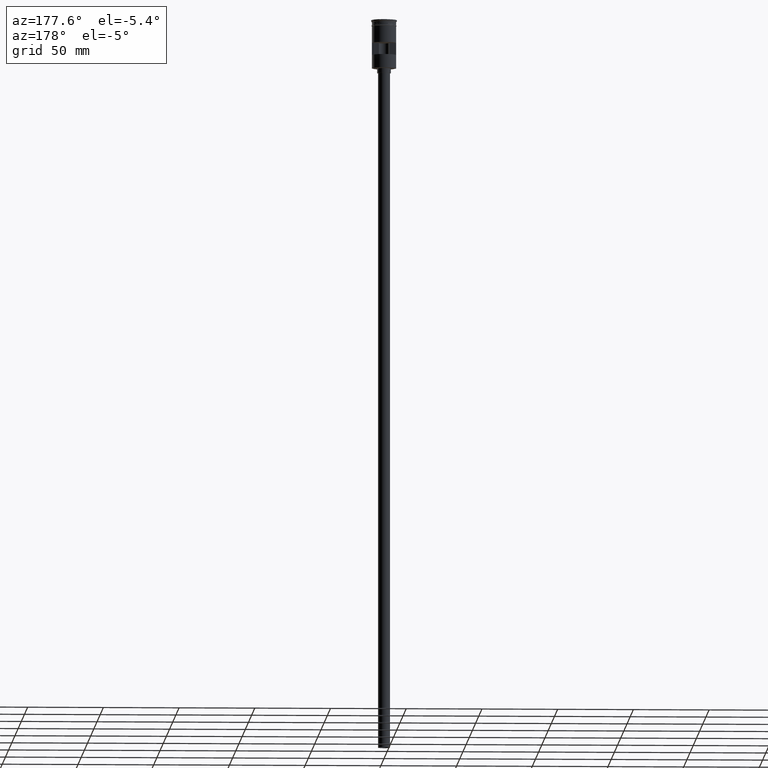
[diagram: clean part render]
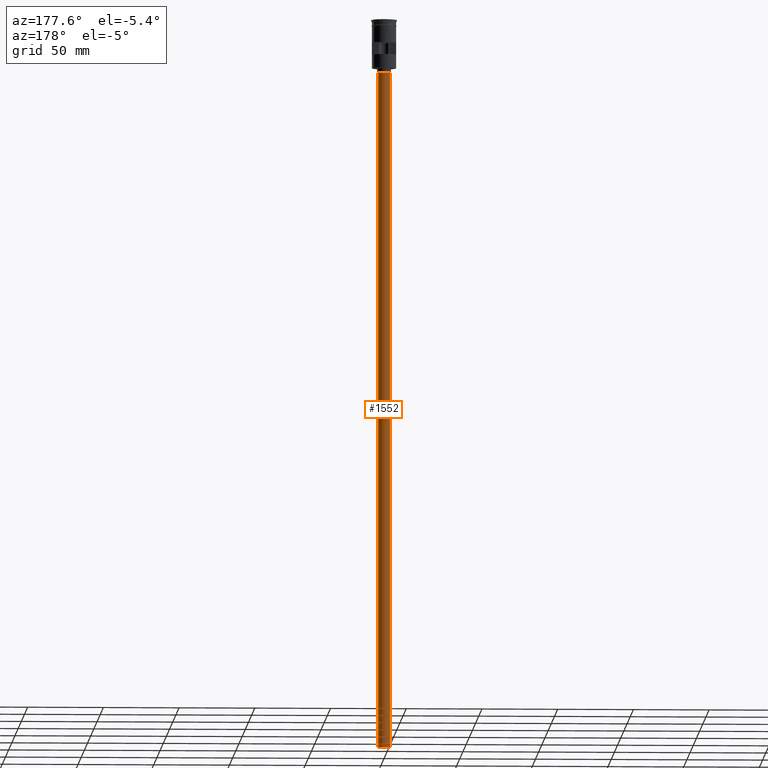
[diagram: same view with one face highlighted and labeled with its STEP entity id]
A machine part, auxiliary view. The second image highlights one B-rep face of the part: STEP entity #1552.
In plain terms, the highlighted cylindrical surface (edge-blend (fillet) strip) has radius 4 mm, axis along (-0, -0, 1).
Its self-contained STEP definition (entity closure, byte-faithful):
#93 = DIRECTION ( 'NONE',  ( -0.000000000000000000, -0.000000000000000000, 1.000000000000000000 ) ) ;
#118 = CARTESIAN_POINT ( 'NONE',  ( 0.000000000000000000, 0.000000000000000000, -482.0000000000000000 ) ) ;
#268 = CIRCLE ( 'NONE', #1061, 4.000000000000000000 ) ;
#284 = VERTEX_POINT ( 'NONE', #1601 ) ;
#325 = CARTESIAN_POINT ( 'NONE',  ( 4.000000000000000000, 0.000000000000000000, -482.0000000000000000 ) ) ;
#381 = DIRECTION ( 'NONE',  ( 0.000000000000000000, 0.000000000000000000, -1.000000000000000000 ) ) ;
#466 = CARTESIAN_POINT ( 'NONE',  ( 0.000000000000000000, 0.000000000000000000, -35.00000000000000000 ) ) ;
#537 = ORIENTED_EDGE ( 'NONE', *, *, #1251, .F. ) ;
#576 = VERTEX_POINT ( 'NONE', #1082 ) ;
#586 = LINE ( 'NONE', #1068, #1267 ) ;
#610 = FACE_OUTER_BOUND ( 'NONE', #722, .T. ) ;
#625 = EDGE_CURVE ( 'NONE', #1591, #728, #586, .T. ) ;
#665 = AXIS2_PLACEMENT_3D ( 'NONE', #118, #715, #1584 ) ;
#679 = DIRECTION ( 'NONE',  ( -0.000000000000000000, -0.000000000000000000, 1.000000000000000000 ) ) ;
#688 = LINE ( 'NONE', #325, #888 ) ;
#715 = DIRECTION ( 'NONE',  ( -0.000000000000000000, -0.000000000000000000, 1.000000000000000000 ) ) ;
#722 = EDGE_LOOP ( 'NONE', ( #537, #1038, #1052, #1259 ) ) ;
#728 = VERTEX_POINT ( 'NONE', #770 ) ;
#729 = DIRECTION ( 'NONE',  ( -1.000000000000000000, 0.000000000000000000, 0.000000000000000000 ) ) ;
#770 = CARTESIAN_POINT ( 'NONE',  ( -4.000000000000000000, 4.898587196589412829E-16, -35.00000000000000000 ) ) ;
#847 = DIRECTION ( 'NONE',  ( -1.000000000000000000, 0.000000000000000000, 0.000000000000000000 ) ) ;
#888 = VECTOR ( 'NONE', #679, 1000.000000000000000 ) ;
#994 = EDGE_CURVE ( 'NONE', #728, #576, #268, .T. ) ;
#1038 = ORIENTED_EDGE ( 'NONE', *, *, #625, .T. ) ;
#1052 = ORIENTED_EDGE ( 'NONE', *, *, #994, .T. ) ;
#1061 = AXIS2_PLACEMENT_3D ( 'NONE', #466, #1215, #729 ) ;
#1068 = CARTESIAN_POINT ( 'NONE',  ( -4.000000000000000000, 4.898587196589412829E-16, -482.0000000000000000 ) ) ;
#1082 = CARTESIAN_POINT ( 'NONE',  ( 4.000000000000000000, 0.000000000000000000, -35.00000000000000000 ) ) ;
#1201 = CARTESIAN_POINT ( 'NONE',  ( 0.000000000000000000, 0.000000000000000000, -482.0000000000000000 ) ) ;
#1215 = DIRECTION ( 'NONE',  ( 0.000000000000000000, 0.000000000000000000, -1.000000000000000000 ) ) ;
#1220 = CYLINDRICAL_SURFACE ( 'NONE', #665, 4.000000000000000000 ) ;
#1251 = EDGE_CURVE ( 'NONE', #1591, #284, #1320, .T. ) ;
#1259 = ORIENTED_EDGE ( 'NONE', *, *, #1487, .F. ) ;
#1267 = VECTOR ( 'NONE', #93, 1000.000000000000000 ) ;
#1320 = CIRCLE ( 'NONE', #1399, 4.000000000000000000 ) ;
#1399 = AXIS2_PLACEMENT_3D ( 'NONE', #1201, #381, #847 ) ;
#1407 = CARTESIAN_POINT ( 'NONE',  ( -4.000000000000000000, 4.898587196589412829E-16, -482.0000000000000000 ) ) ;
#1487 = EDGE_CURVE ( 'NONE', #284, #576, #688, .T. ) ;
#1552 = ADVANCED_FACE ( 'NONE', ( #610 ), #1220, .T. ) ;
#1584 = DIRECTION ( 'NONE',  ( 1.000000000000000000, 0.000000000000000000, 0.000000000000000000 ) ) ;
#1591 = VERTEX_POINT ( 'NONE', #1407 ) ;
#1601 = CARTESIAN_POINT ( 'NONE',  ( 4.000000000000000000, 0.000000000000000000, -482.0000000000000000 ) ) ;